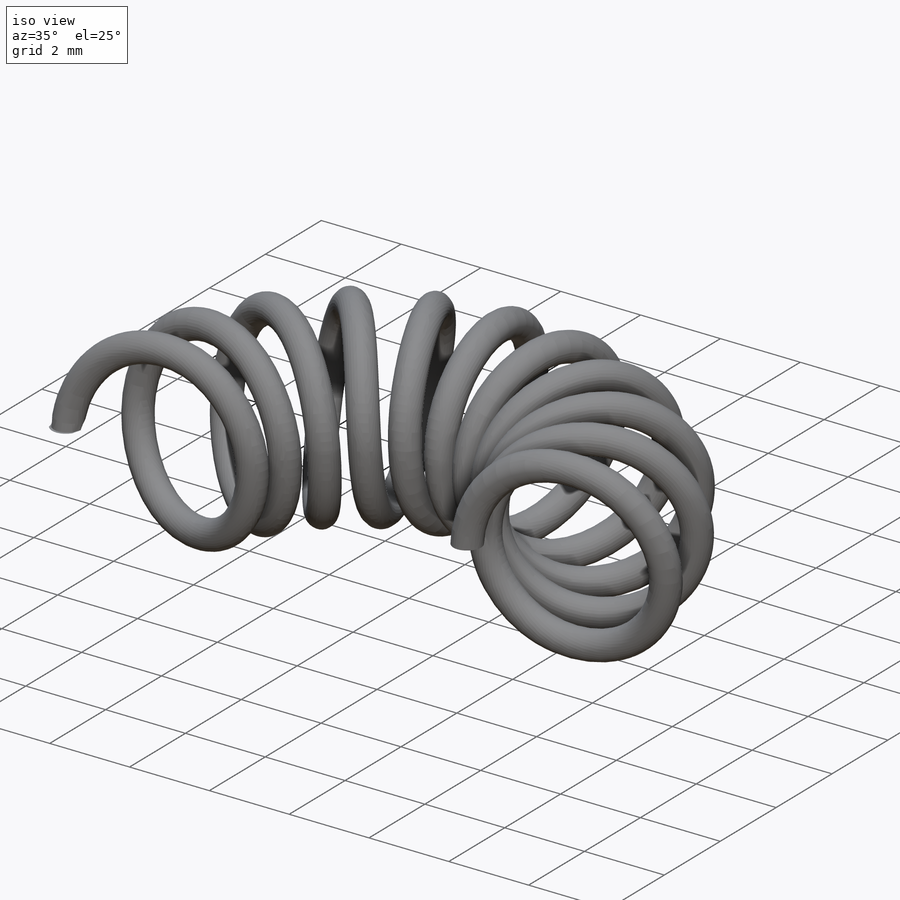
[diagram: iso view]
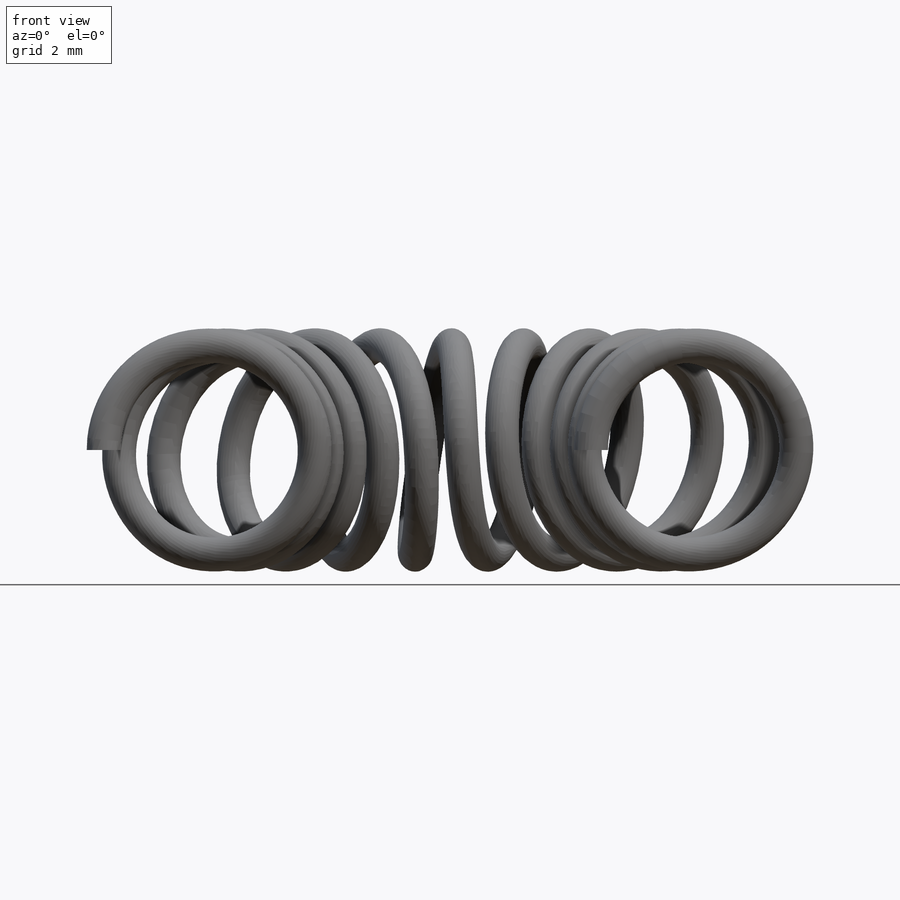
[diagram: front view]
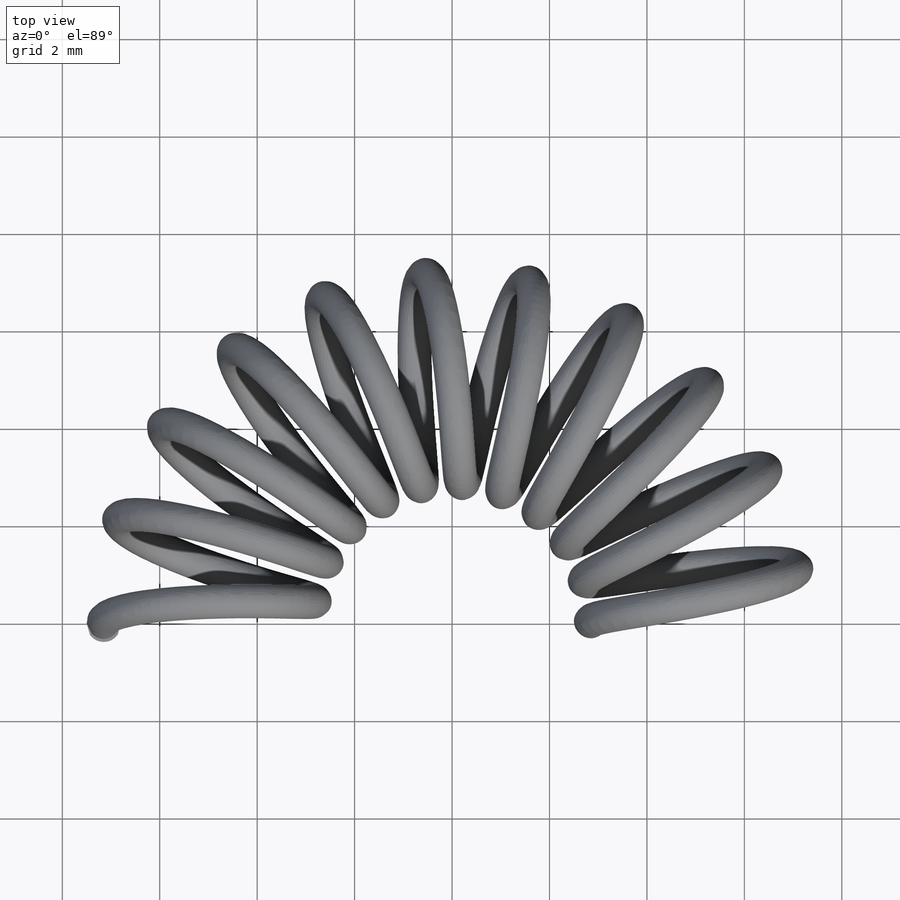
[diagram: top view]
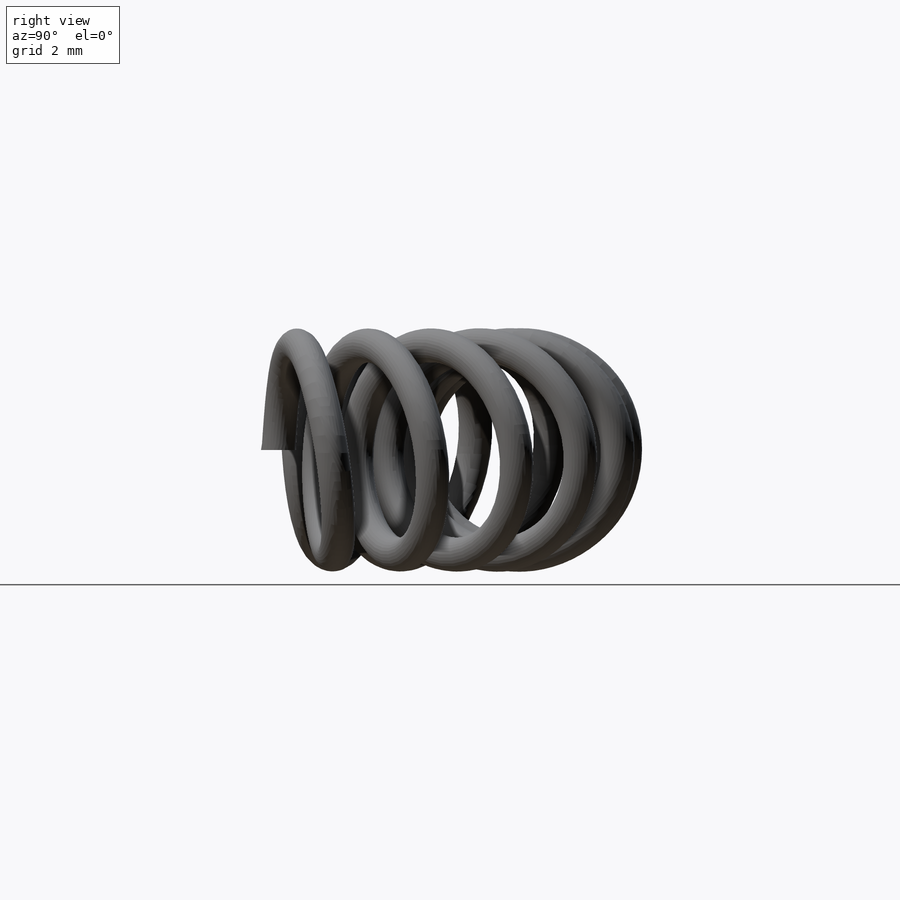
[diagram: right view]
SOLIDWORKS PART (.sldprt)
format: sldprt  version: not decoded by parser v0  size: 1,645,056 bytes
history: native  units: mm
features: sketch x5, material x1, sweep x1, revolve x1 (+12 scaffold rows collapsed)
feature tree (20):
  scaffold x12  (default folders/planes/origin — collapsed)
  material  "Material <not specified>"
  sketch  "Sketch1"  dims[c1.D1=10.0mm c1.D2=5.0mm c2.D2=10.0deg c3.D2=5.0mm c4.D2=0.5deg]
  sketch  "Sketch2"  dims[D1=3.0mm]
  sketch  "Sketch6"  dims[D1=15.0mm]
  sketch  "Sketch5"  dims[D1=0.7mm]
  sweep  "Sweep1"
  sketch  "Sketch7"
  revolve  "Revolve1"  Angle=360deg
decode coverage: 5 of 7 modeling features carry decoded parameters
note: suppression state not decoded; provenance and decode notes live in map.json
